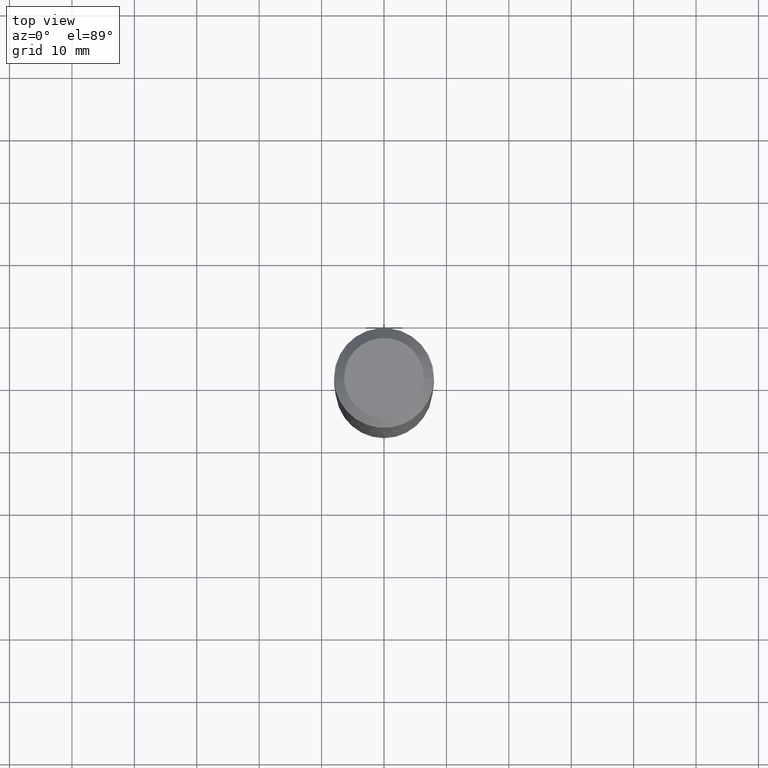
[diagram: clean part render]
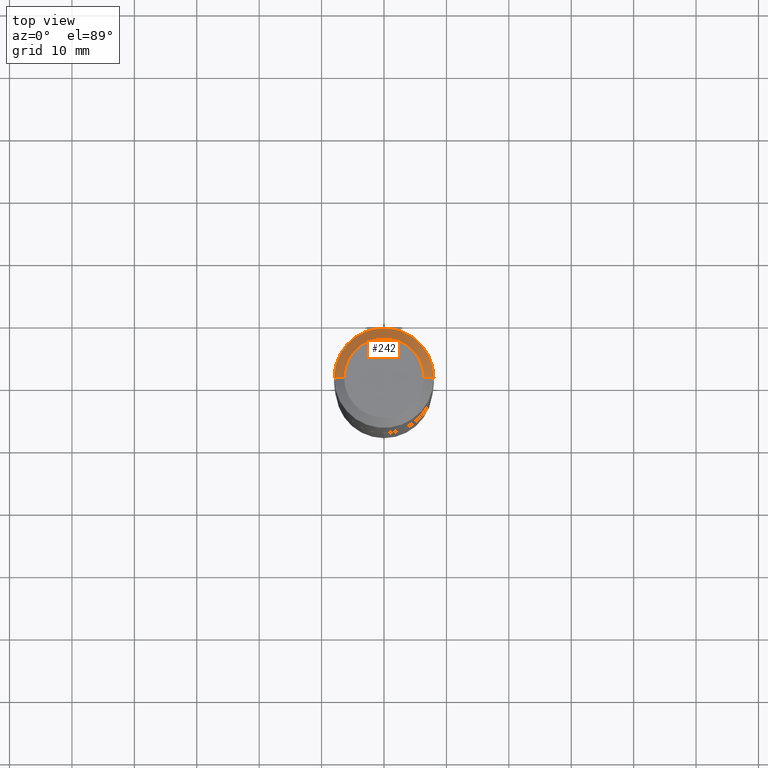
[diagram: same view with one face highlighted and labeled with its STEP entity id]
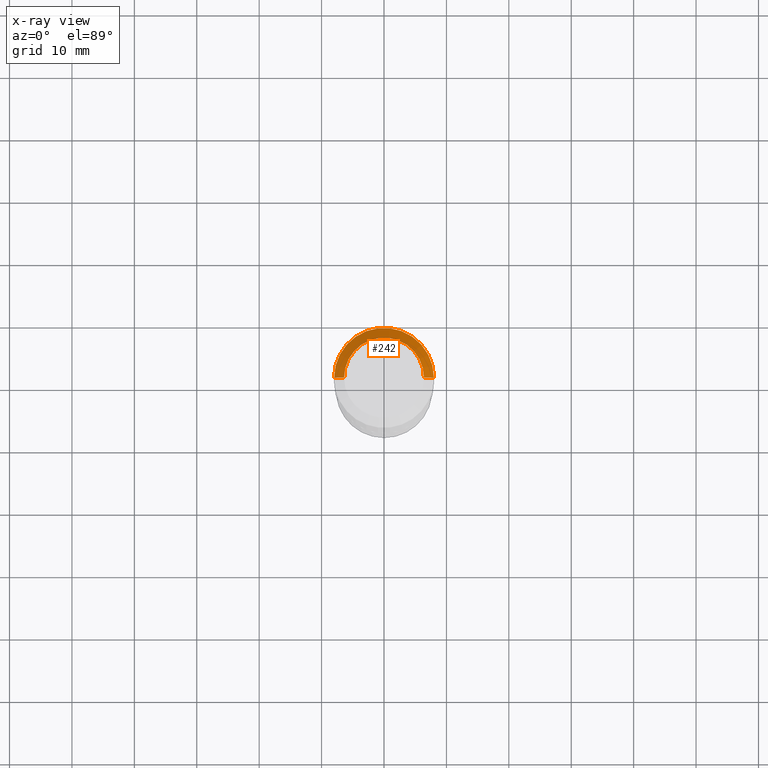
[diagram: x-ray of the same camera — body ghosted, the highlighted face saturated]
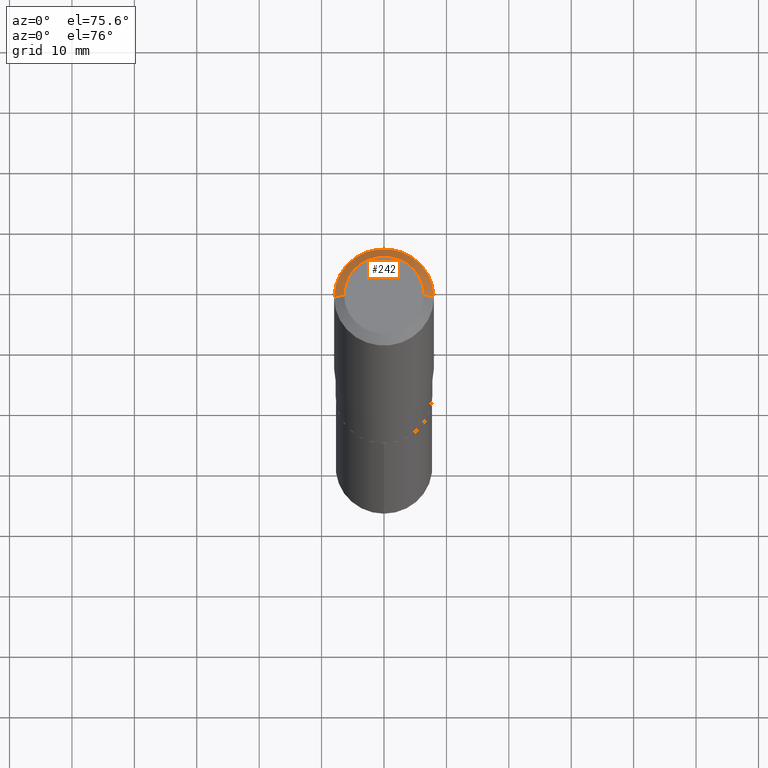
[diagram: same view with one face highlighted and labeled with its STEP entity id]
A machine part, top view. The second image highlights one B-rep face of the part: STEP entity #242.
The next image is the same camera in x-ray: the body ghosted, the highlighted face saturated — about 0% of this face is hidden behind the body in this view.
A second angle (auxiliary view) of the same face is appended — the face is thin or edge-on in the first view.
In plain terms, the highlighted conical surface has half-angle 45 deg.
Its self-contained STEP definition (entity closure, byte-faithful):
#10 = EDGE_LOOP ( 'NONE', ( #450, #489, #122, #253 ) ) ;
#16 = DIRECTION ( 'NONE',  ( 2.445468806185136597E-29, -3.491481338843145583E-15, -1.000000000000000000 ) ) ;
#35 = VECTOR ( 'NONE', #51, 39.37007874015748143 ) ;
#38 = CARTESIAN_POINT ( 'NONE',  ( -0.3149500000000000077, 1.979355685803558833E-15, -0.06299000000000036514 ) ) ;
#44 = VERTEX_POINT ( 'NONE', #75 ) ;
#49 = DIRECTION ( 'NONE',  ( 1.000000000000000000, -6.982962677686266711E-15, 0.000000000000000000 ) ) ;
#51 = DIRECTION ( 'NONE',  ( -0.7071067811865453523, 2.468850131082234184E-15, -0.7071067811865496822 ) ) ;
#59 = CARTESIAN_POINT ( 'NONE',  ( 1.540400801016026329E-30, -2.199284095337310135E-16, -0.06299000000000036514 ) ) ;
#75 = CARTESIAN_POINT ( 'NONE',  ( -0.3149500000000000077, -1.131669549400917718E-15, -0.06299000000000036514 ) ) ;
#81 = VERTEX_POINT ( 'NONE', #178 ) ;
#106 = VECTOR ( 'NONE', #428, 39.37007874015748143 ) ;
#110 = VERTEX_POINT ( 'NONE', #437 ) ;
#122 = ORIENTED_EDGE ( 'NONE', *, *, #138, .T. ) ;
#125 = DIRECTION ( 'NONE',  ( -2.445468806185136597E-29, 3.491481338843145583E-15, 1.000000000000000000 ) ) ;
#138 = EDGE_CURVE ( 'NONE', #224, #44, #163, .T. ) ;
#142 = AXIS2_PLACEMENT_3D ( 'NONE', #59, #16, #360 ) ;
#163 = CIRCLE ( 'NONE', #411, 0.3149500000000000077 ) ;
#178 = CARTESIAN_POINT ( 'NONE',  ( 0.2519600000000000173, -2.054606664725195058E-15, 3.855188123729206640E-18 ) ) ;
#197 = FACE_OUTER_BOUND ( 'NONE', #10, .T. ) ;
#203 = LINE ( 'NONE', #361, #106 ) ;
#216 = CIRCLE ( 'NONE', #404, 0.2519600000000000173 ) ;
#224 = VERTEX_POINT ( 'NONE', #289 ) ;
#242 = ADVANCED_FACE ( 'NONE', ( #197 ), #276, .T. ) ;
#253 = ORIENTED_EDGE ( 'NONE', *, *, #301, .F. ) ;
#263 = EDGE_CURVE ( 'NONE', #81, #110, #216, .T. ) ;
#266 = DIRECTION ( 'NONE',  ( -2.445468806185136597E-29, 3.491481338843145583E-15, 1.000000000000000000 ) ) ;
#276 = CONICAL_SURFACE ( 'NONE', #142, 0.3149500000000000077, 0.7853981633974452814 ) ;
#289 = CARTESIAN_POINT ( 'NONE',  ( 0.3149500000000000077, -2.419212504871020909E-15, -0.06299000000000036514 ) ) ;
#301 = EDGE_CURVE ( 'NONE', #110, #44, #389, .T. ) ;
#340 = CARTESIAN_POINT ( 'NONE',  ( -9.427742298522569579E-47, 1.346031739168368629E-32, 3.855188123715871501E-18 ) ) ;
#360 = DIRECTION ( 'NONE',  ( -1.000000000000000000, 6.982962677686266711E-15, 0.000000000000000000 ) ) ;
#361 = CARTESIAN_POINT ( 'NONE',  ( 0.3149500000000000077, -2.380642253931875190E-15, -0.06299000000000036514 ) ) ;
#389 = LINE ( 'NONE', #38, #35 ) ;
#393 = EDGE_CURVE ( 'NONE', #81, #224, #203, .T. ) ;
#404 = AXIS2_PLACEMENT_3D ( 'NONE', #340, #266, #490 ) ;
#411 = AXIS2_PLACEMENT_3D ( 'NONE', #430, #125, #49 ) ;
#428 = DIRECTION ( 'NONE',  ( 0.7071067811865453523, -7.319954787623248157E-15, -0.7071067811865496822 ) ) ;
#430 = CARTESIAN_POINT ( 'NONE',  ( 1.540400801016026329E-30, -2.199284095337310135E-16, -0.06299000000000036514 ) ) ;
#437 = CARTESIAN_POINT ( 'NONE',  ( -0.2519600000000000173, 1.869391481036695286E-15, 3.855188123703182704E-18 ) ) ;
#450 = ORIENTED_EDGE ( 'NONE', *, *, #263, .F. ) ;
#489 = ORIENTED_EDGE ( 'NONE', *, *, #393, .T. ) ;
#490 = DIRECTION ( 'NONE',  ( 1.000000000000000000, -6.982962677686266711E-15, 4.876115136096691995E-29 ) ) ;